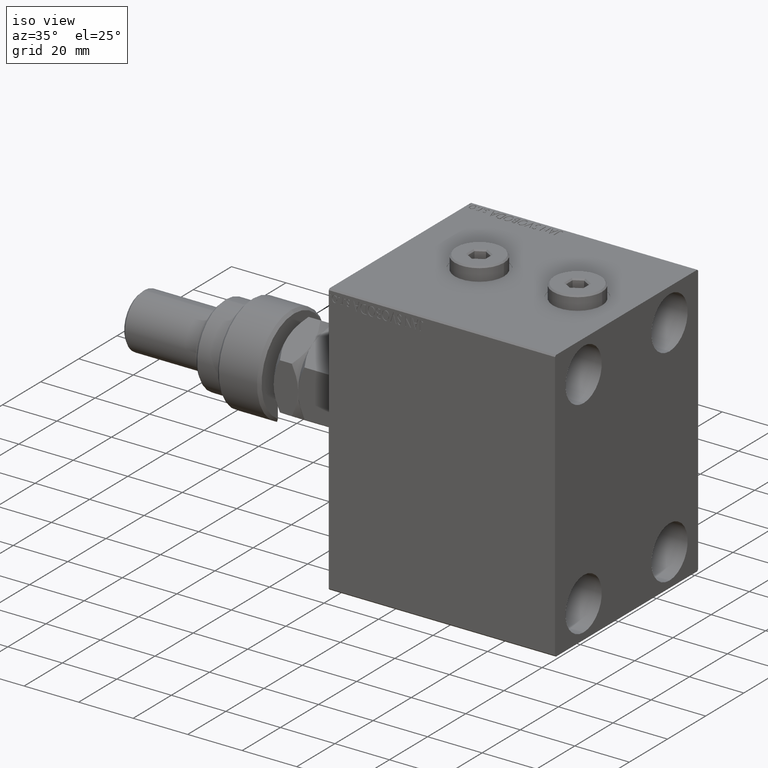
[diagram: clean part render]
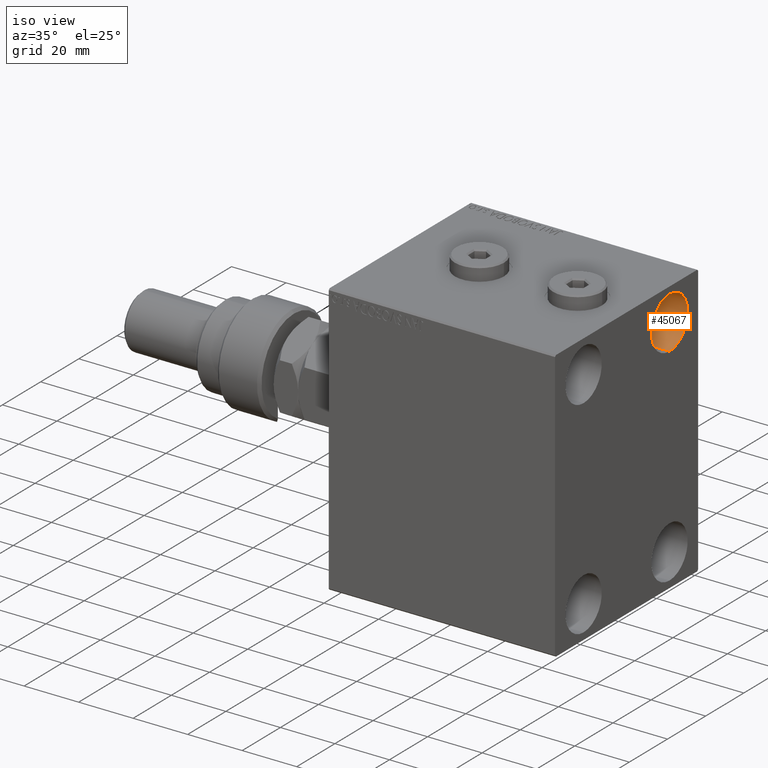
[diagram: same view with one face highlighted and labeled with its STEP entity id]
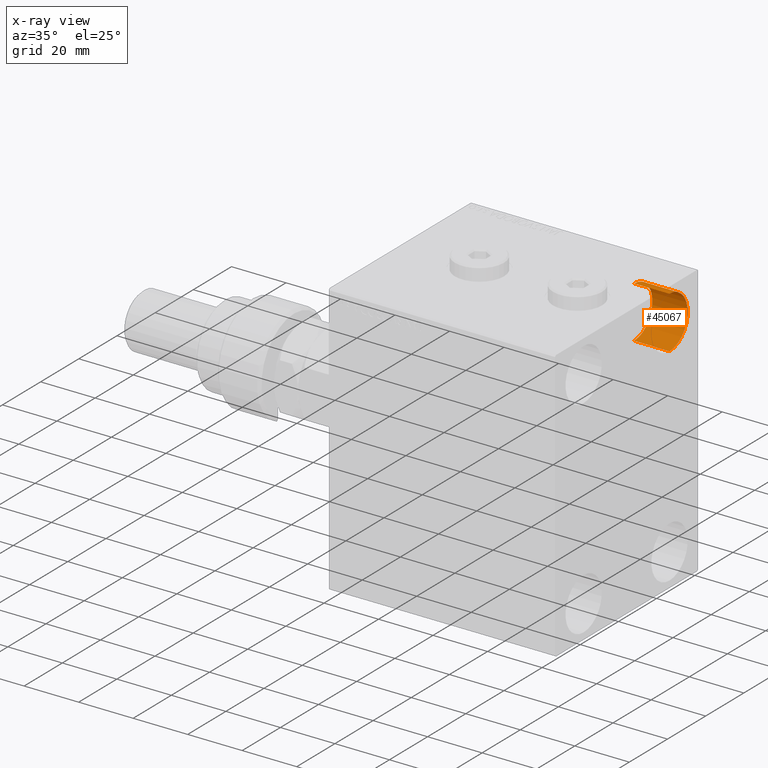
[diagram: x-ray of the same camera — body ghosted, the highlighted face saturated]
A machine part, iso view. The second image highlights one B-rep face of the part: STEP entity #45067.
The next image is the same camera in x-ray: the body ghosted, the highlighted face saturated — about 0% of this face is hidden behind the body in this view.
In plain terms, the highlighted cylindrical surface (edge-blend (fillet) strip) has radius 9.5 mm, axis along (1, 0, 0).
Its self-contained STEP definition (entity closure, byte-faithful):
#3008 = AXIS2_PLACEMENT_3D ( 'NONE', #43841, #47713, #7205 ) ;
#4783 = DIRECTION ( 'NONE',  ( 0.000000000000000000, 0.000000000000000000, 1.000000000000000000 ) ) ;
#7205 = DIRECTION ( 'NONE',  ( 0.000000000000000000, 0.000000000000000000, 1.000000000000000000 ) ) ;
#8884 = DIRECTION ( 'NONE',  ( -1.000000000000000000, -0.000000000000000000, -0.000000000000000000 ) ) ;
#9889 = ORIENTED_EDGE ( 'NONE', *, *, #40453, .T. ) ;
#10183 = ORIENTED_EDGE ( 'NONE', *, *, #17822, .F. ) ;
#10387 = EDGE_CURVE ( 'NONE', #45290, #42414, #30142, .T. ) ;
#11369 = EDGE_CURVE ( 'NONE', #44757, #42414, #29096, .T. ) ;
#11758 = DIRECTION ( 'NONE',  ( 1.000000000000000000, -0.000000000000000000, -0.000000000000000000 ) ) ;
#12797 = CARTESIAN_POINT ( 'NONE',  ( 70.00000000000000000, 22.50000000000000355, 47.49999999999999289 ) ) ;
#16752 = CARTESIAN_POINT ( 'NONE',  ( 83.00000000000000000, 22.50000000000000355, 28.49999999999998934 ) ) ;
#17822 = EDGE_CURVE ( 'NONE', #19984, #45290, #30203, .T. ) ;
#19984 = VERTEX_POINT ( 'NONE', #12797 ) ;
#21358 = DIRECTION ( 'NONE',  ( 1.000000000000000000, -0.000000000000000000, -0.000000000000000000 ) ) ;
#21552 = CIRCLE ( 'NONE', #27717, 9.500000000000001776 ) ;
#25451 = CARTESIAN_POINT ( 'NONE',  ( 70.00000000000000000, 22.50000000000000355, 28.49999999999998934 ) ) ;
#25590 = VECTOR ( 'NONE', #11758, 1000.000000000000000 ) ;
#27333 = CARTESIAN_POINT ( 'NONE',  ( 70.00000000000000000, 22.50000000000000355, 37.99999999999999289 ) ) ;
#27717 = AXIS2_PLACEMENT_3D ( 'NONE', #27333, #8884, #4783 ) ;
#29096 = LINE ( 'NONE', #25451, #47204 ) ;
#30142 = CIRCLE ( 'NONE', #3008, 9.500000000000001776 ) ;
#30203 = LINE ( 'NONE', #44978, #25590 ) ;
#30855 = CARTESIAN_POINT ( 'NONE',  ( 70.00000000000000000, 22.50000000000000355, 28.49999999999998934 ) ) ;
#31749 = CARTESIAN_POINT ( 'NONE',  ( 70.00000000000000000, 22.50000000000000355, 37.99999999999999289 ) ) ;
#34910 = DIRECTION ( 'NONE',  ( 0.000000000000000000, 0.000000000000000000, -1.000000000000000000 ) ) ;
#40453 = EDGE_CURVE ( 'NONE', #19984, #44757, #21552, .T. ) ;
#42408 = DIRECTION ( 'NONE',  ( 1.000000000000000000, -0.000000000000000000, -0.000000000000000000 ) ) ;
#42414 = VERTEX_POINT ( 'NONE', #16752 ) ;
#43841 = CARTESIAN_POINT ( 'NONE',  ( 83.00000000000000000, 22.50000000000000355, 37.99999999999999289 ) ) ;
#44402 = ORIENTED_EDGE ( 'NONE', *, *, #10387, .F. ) ;
#44563 = CARTESIAN_POINT ( 'NONE',  ( 83.00000000000000000, 22.50000000000000355, 47.49999999999999289 ) ) ;
#44757 = VERTEX_POINT ( 'NONE', #30855 ) ;
#44813 = AXIS2_PLACEMENT_3D ( 'NONE', #31749, #42408, #34910 ) ;
#44978 = CARTESIAN_POINT ( 'NONE',  ( 70.00000000000000000, 22.50000000000000355, 47.49999999999999289 ) ) ;
#45067 = ADVANCED_FACE ( 'NONE', ( #46047 ), #46289, .F. ) ;
#45290 = VERTEX_POINT ( 'NONE', #44563 ) ;
#45855 = EDGE_LOOP ( 'NONE', ( #10183, #9889, #47327, #44402 ) ) ;
#46047 = FACE_OUTER_BOUND ( 'NONE', #45855, .T. ) ;
#46289 = CYLINDRICAL_SURFACE ( 'NONE', #44813, 9.500000000000001776 ) ;
#47204 = VECTOR ( 'NONE', #21358, 1000.000000000000000 ) ;
#47327 = ORIENTED_EDGE ( 'NONE', *, *, #11369, .T. ) ;
#47713 = DIRECTION ( 'NONE',  ( -1.000000000000000000, -0.000000000000000000, -0.000000000000000000 ) ) ;